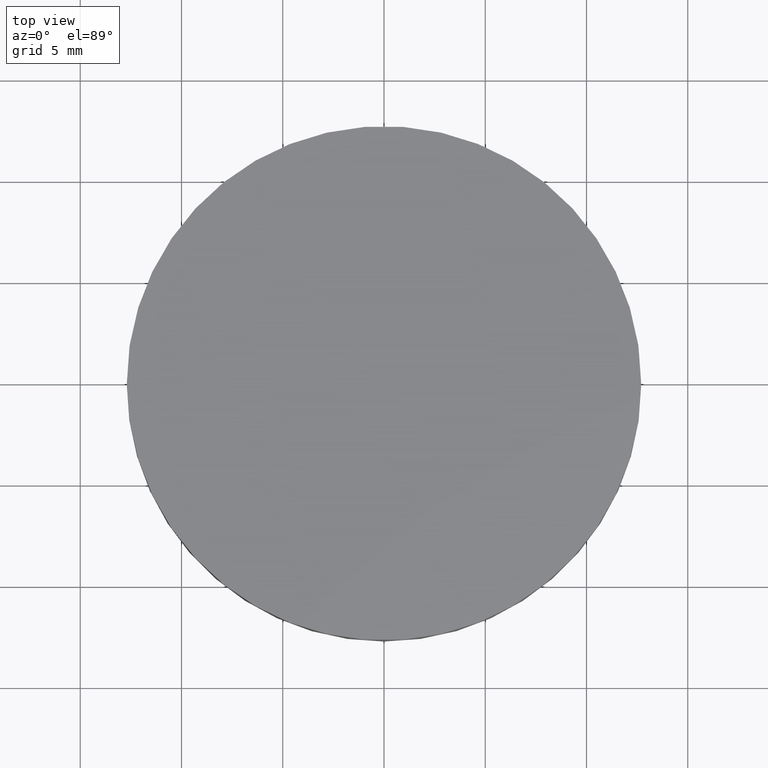
[diagram: clean part render]
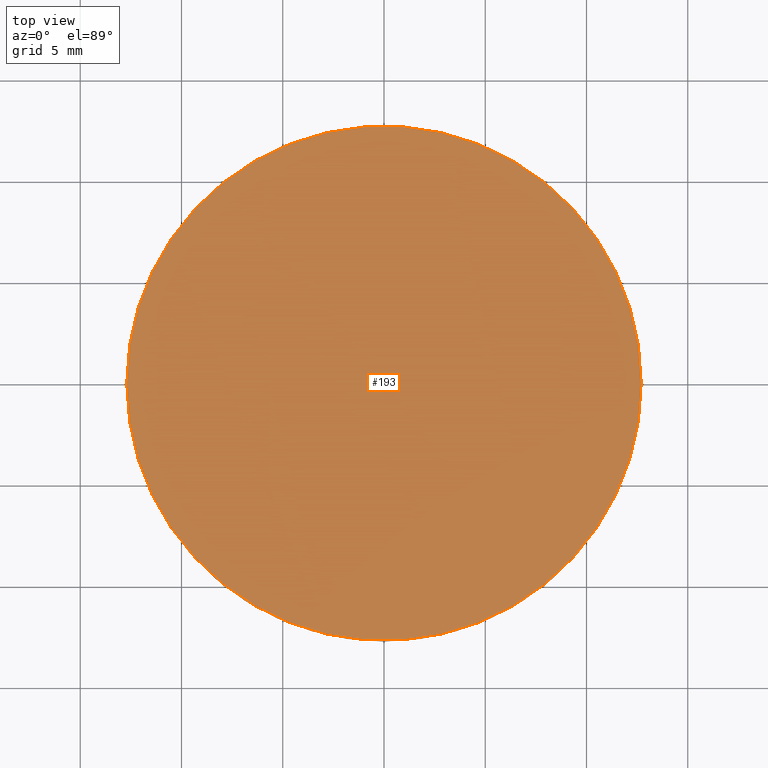
[diagram: same view with one face highlighted and labeled with its STEP entity id]
A machine part, top view. The second image highlights one B-rep face of the part: STEP entity #193.
In plain terms, the highlighted planar face has unit normal (0, 0, 1).
Its self-contained STEP definition (entity closure, byte-faithful):
#3 = DIRECTION ( 'NONE',  ( 0.0000000000000000000, 0.0000000000000000000, 1.000000000000000000 ) ) ;
#27 = DIRECTION ( 'NONE',  ( 1.000000000000000000, 0.0000000000000000000, -0.0000000000000000000 ) ) ;
#35 = CARTESIAN_POINT ( 'NONE',  ( 4.996003610813200500E-016, 2.442490654175340100E-015, 3.799999999999999800 ) ) ;
#45 = VERTEX_POINT ( 'NONE', #70 ) ;
#56 = EDGE_CURVE ( 'NONE', #45, #234, #230, .T. ) ;
#70 = CARTESIAN_POINT ( 'NONE',  ( 12.69999999999999900, 2.442490654175340100E-015, 3.799999999999999800 ) ) ;
#81 = EDGE_CURVE ( 'NONE', #234, #45, #187, .T. ) ;
#88 = ORIENTED_EDGE ( 'NONE', *, *, #81, .F. ) ;
#92 = AXIS2_PLACEMENT_3D ( 'NONE', #223, #3, #27 ) ;
#129 = AXIS2_PLACEMENT_3D ( 'NONE', #35, #168, #132 ) ;
#132 = DIRECTION ( 'NONE',  ( 1.000000000000000000, 0.0000000000000000000, 0.0000000000000000000 ) ) ;
#137 = CARTESIAN_POINT ( 'NONE',  ( 4.996003610813200500E-016, 2.442490654175340100E-015, 3.799999999999999800 ) ) ;
#168 = DIRECTION ( 'NONE',  ( -0.0000000000000000000, -0.0000000000000000000, -1.000000000000000000 ) ) ;
#170 = EDGE_LOOP ( 'NONE', ( #212, #88 ) ) ;
#171 = AXIS2_PLACEMENT_3D ( 'NONE', #137, #201, #220 ) ;
#179 = CARTESIAN_POINT ( 'NONE',  ( -12.69999999999999900, 3.997792089092478900E-015, 3.799999999999999800 ) ) ;
#182 = FACE_OUTER_BOUND ( 'NONE', #170, .T. ) ;
#187 = CIRCLE ( 'NONE', #171, 12.69999999999999900 ) ;
#193 = ADVANCED_FACE ( 'NONE', ( #182 ), #203, .T. ) ;
#201 = DIRECTION ( 'NONE',  ( -0.0000000000000000000, -0.0000000000000000000, -1.000000000000000000 ) ) ;
#203 = PLANE ( 'NONE',  #92 ) ;
#212 = ORIENTED_EDGE ( 'NONE', *, *, #56, .F. ) ;
#220 = DIRECTION ( 'NONE',  ( 1.000000000000000000, 0.0000000000000000000, 0.0000000000000000000 ) ) ;
#223 = CARTESIAN_POINT ( 'NONE',  ( 0.0000000000000000000, 26.11199999999999800, 3.799999999999999800 ) ) ;
#230 = CIRCLE ( 'NONE', #129, 12.69999999999999900 ) ;
#234 = VERTEX_POINT ( 'NONE', #179 ) ;